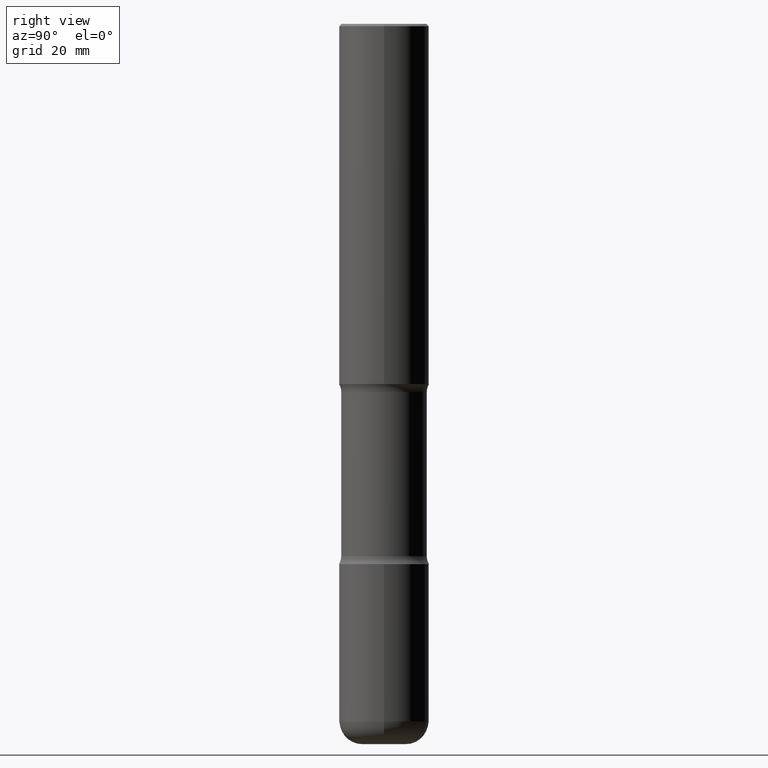
[diagram: clean part render]
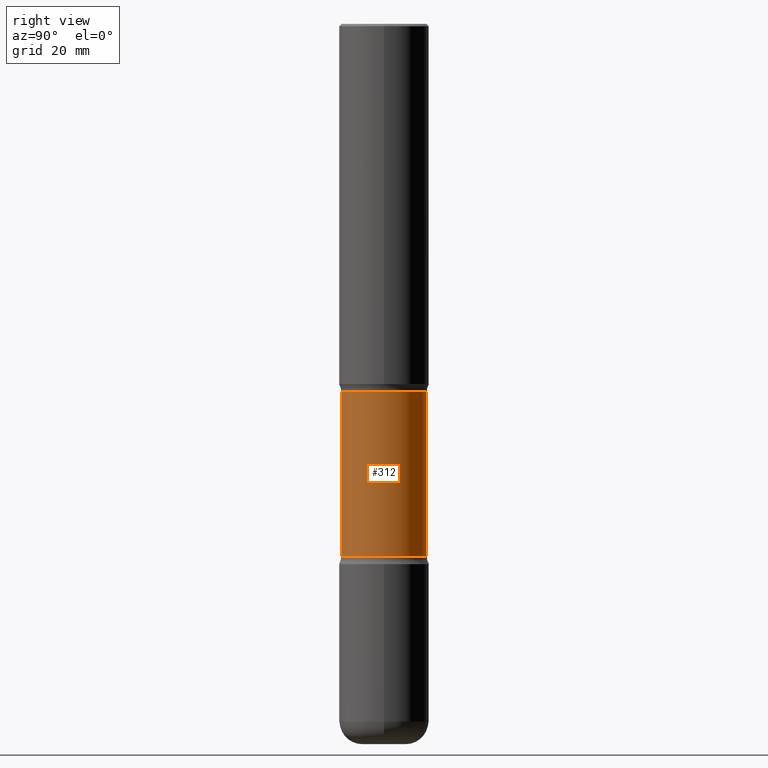
[diagram: same view with one face highlighted and labeled with its STEP entity id]
A machine part, right view. The second image highlights one B-rep face of the part: STEP entity #312.
In plain terms, the highlighted cylindrical surface (partial cylindrical patch) has radius 9.0488 mm, axis along (0, -0, -1).
Its self-contained STEP definition (entity closure, byte-faithful):
#12 = ORIENTED_EDGE ( 'NONE', *, *, #73, .F. ) ;
#14 = CARTESIAN_POINT ( 'NONE',  ( 2.487680453925806274E-15, 0.3562499999999891309, -3.065847835955330503 ) ) ;
#17 = DIRECTION ( 'NONE',  ( 2.508247471065963170E-29, -3.401578717594097873E-15, -1.000000000000000000 ) ) ;
#73 = EDGE_CURVE ( 'NONE', #361, #440, #331, .T. ) ;
#74 = EDGE_CURVE ( 'NONE', #322, #176, #245, .T. ) ;
#129 = DIRECTION ( 'NONE',  ( 6.982962677686265133E-15, 1.000000000000000000, -3.067338098149347905E-15 ) ) ;
#132 = AXIS2_PLACEMENT_3D ( 'NONE', #256, #351, #431 ) ;
#138 = CARTESIAN_POINT ( 'NONE',  ( 1.476698083443205790E-28, -2.081403410118529621E-14, -5.999999999999999112 ) ) ;
#151 = VECTOR ( 'NONE', #420, 39.37007874015748143 ) ;
#171 = CARTESIAN_POINT ( 'NONE',  ( 7.407401089244291879E-29, -1.083328454578828421E-14, -3.065847835955329614 ) ) ;
#176 = VERTEX_POINT ( 'NONE', #381 ) ;
#230 = EDGE_CURVE ( 'NONE', #440, #176, #553, .T. ) ;
#245 = LINE ( 'NONE', #295, #151 ) ;
#256 = CARTESIAN_POINT ( 'NONE',  ( 1.083944695982298980E-28, -1.548767942740887449E-14, -4.434152164044669497 ) ) ;
#257 = ORIENTED_EDGE ( 'NONE', *, *, #505, .T. ) ;
#260 = CYLINDRICAL_SURFACE ( 'NONE', #338, 0.3562500000000000111 ) ;
#290 = CIRCLE ( 'NONE', #532, 0.3562500000000000111 ) ;
#295 = CARTESIAN_POINT ( 'NONE',  ( -2.444052411705960129E-15, -0.3562500000000208278, -5.999999999999998224 ) ) ;
#308 = DIRECTION ( 'NONE',  ( 6.982962677686265133E-15, 1.000000000000000000, -3.067338098149347905E-15 ) ) ;
#312 = ADVANCED_FACE ( 'NONE', ( #520 ), #260, .T. ) ;
#322 = VERTEX_POINT ( 'NONE', #556 ) ;
#331 = LINE ( 'NONE', #455, #395 ) ;
#338 = AXIS2_PLACEMENT_3D ( 'NONE', #138, #513, #308 ) ;
#351 = DIRECTION ( 'NONE',  ( 2.508247471065963170E-29, -3.401578717594097873E-15, -1.000000000000000000 ) ) ;
#353 = ORIENTED_EDGE ( 'NONE', *, *, #74, .T. ) ;
#361 = VERTEX_POINT ( 'NONE', #14 ) ;
#381 = CARTESIAN_POINT ( 'NONE',  ( -2.508369580435107128E-15, -0.3562500000000154987, -4.434152164044668609 ) ) ;
#385 = CARTESIAN_POINT ( 'NONE',  ( 2.487680453925840195E-15, 0.3562499999999844680, -4.434152164044670386 ) ) ;
#395 = VECTOR ( 'NONE', #17, 39.37007874015748143 ) ;
#399 = DIRECTION ( 'NONE',  ( 2.508247471065963170E-29, -3.401578717594097873E-15, -1.000000000000000000 ) ) ;
#420 = DIRECTION ( 'NONE',  ( 2.508247471065963170E-29, -3.401578717594097873E-15, -1.000000000000000000 ) ) ;
#431 = DIRECTION ( 'NONE',  ( 6.982962677686265133E-15, 1.000000000000000000, -3.067338098149347905E-15 ) ) ;
#440 = VERTEX_POINT ( 'NONE', #385 ) ;
#445 = EDGE_LOOP ( 'NONE', ( #257, #353, #493, #12 ) ) ;
#455 = CARTESIAN_POINT ( 'NONE',  ( 2.487680453925879638E-15, 0.3562499999999791389, -6.000000000000000888 ) ) ;
#493 = ORIENTED_EDGE ( 'NONE', *, *, #230, .F. ) ;
#505 = EDGE_CURVE ( 'NONE', #361, #322, #290, .T. ) ;
#513 = DIRECTION ( 'NONE',  ( 2.508247471065963170E-29, -3.401578717594097873E-15, -1.000000000000000000 ) ) ;
#520 = FACE_OUTER_BOUND ( 'NONE', #445, .T. ) ;
#532 = AXIS2_PLACEMENT_3D ( 'NONE', #171, #399, #129 ) ;
#553 = CIRCLE ( 'NONE', #132, 0.3562500000000000111 ) ;
#556 = CARTESIAN_POINT ( 'NONE',  ( -2.508369580435144205E-15, -0.3562500000000108358, -3.065847835955328282 ) ) ;